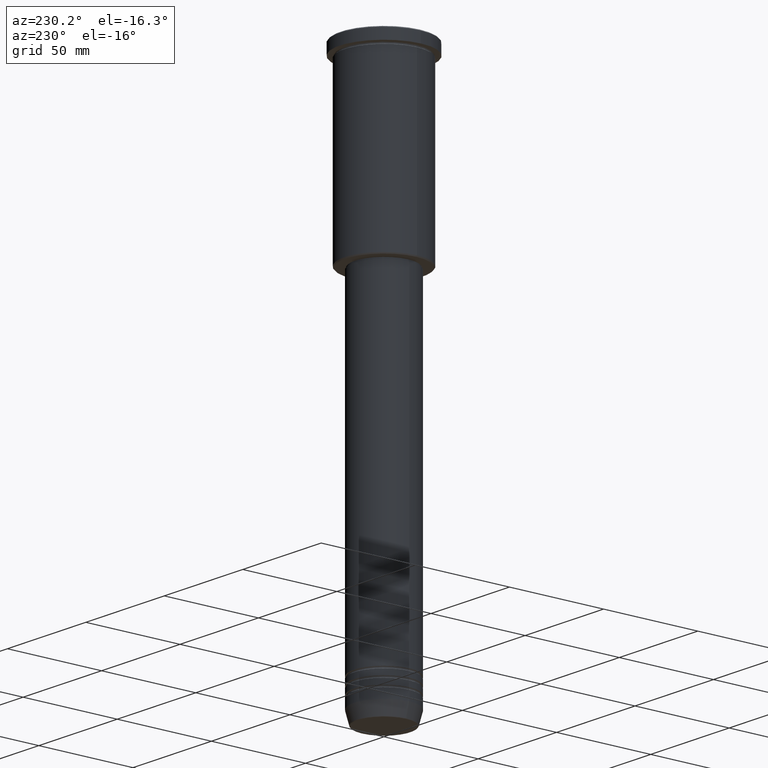
[diagram: clean part render]
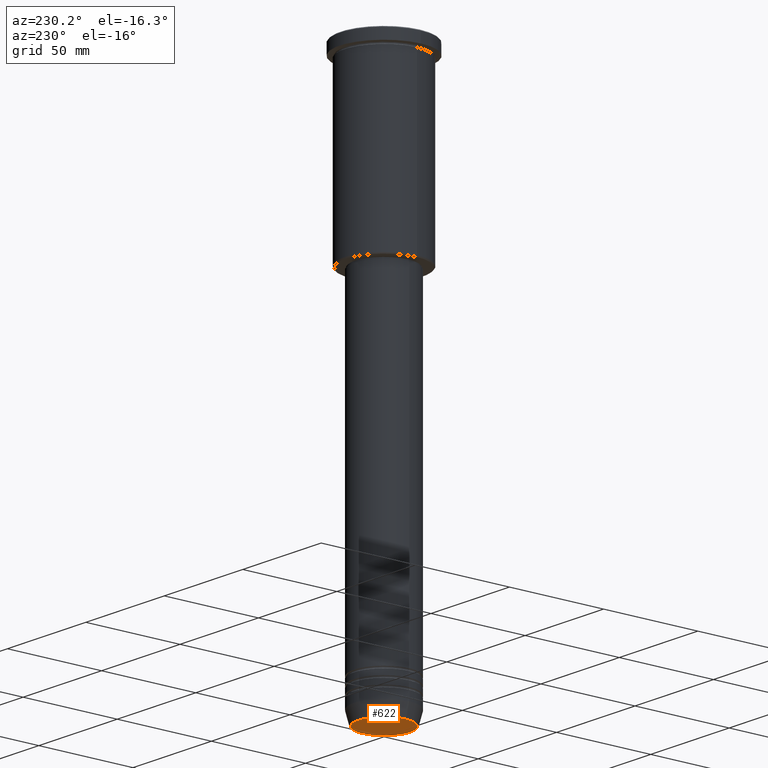
[diagram: same view with one face highlighted and labeled with its STEP entity id]
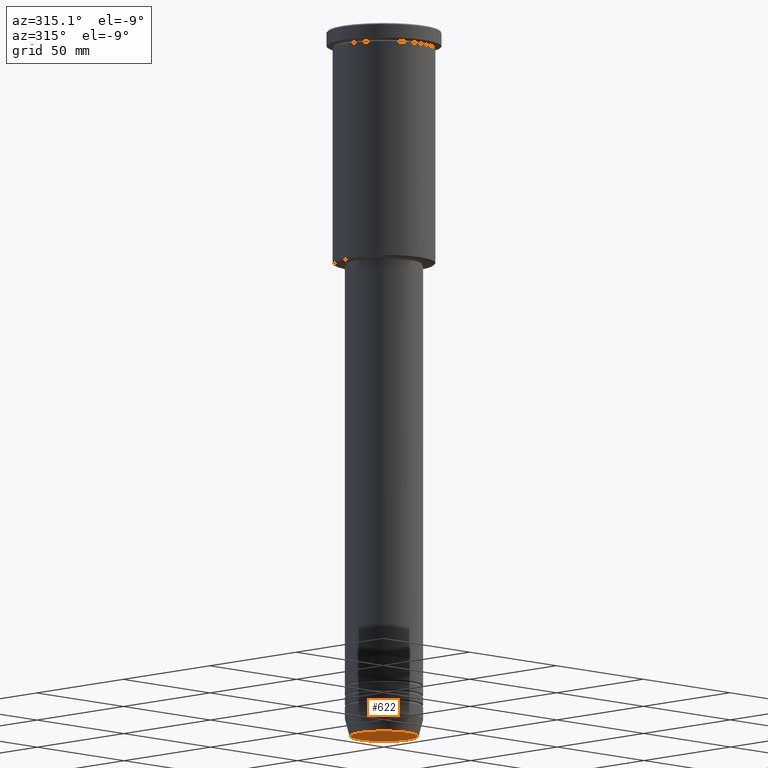
[diagram: same view with one face highlighted and labeled with its STEP entity id]
A machine part, auxiliary view. The second image highlights one B-rep face of the part: STEP entity #622.
A second angle (auxiliary view) of the same face is appended — the face is thin or edge-on in the first view.
In plain terms, the highlighted planar face has unit normal (0, -0, 1).
Its self-contained STEP definition (entity closure, byte-faithful):
#9 = DIRECTION ( 'NONE',  ( 1.000000000000000000, 0.000000000000000000, 0.000000000000000000 ) ) ;
#81 = CARTESIAN_POINT ( 'NONE',  ( 0.000000000000000000, 0.000000000000000000, -291.0000000000000568 ) ) ;
#90 = EDGE_CURVE ( 'NONE', #707, #159, #750, .T. ) ;
#135 = ORIENTED_EDGE ( 'NONE', *, *, #90, .T. ) ;
#159 = VERTEX_POINT ( 'NONE', #815 ) ;
#244 = AXIS2_PLACEMENT_3D ( 'NONE', #81, #1156, #699 ) ;
#284 = DIRECTION ( 'NONE',  ( 0.000000000000000000, -0.000000000000000000, 1.000000000000000000 ) ) ;
#333 = CARTESIAN_POINT ( 'NONE',  ( 0.000000000000000000, 0.000000000000000000, -291.0000000000000568 ) ) ;
#379 = CARTESIAN_POINT ( 'NONE',  ( 0.000000000000000000, 0.000000000000000000, -291.0000000000000568 ) ) ;
#452 = CIRCLE ( 'NONE', #868, 13.74069215899265828 ) ;
#510 = CARTESIAN_POINT ( 'NONE',  ( 13.74069215899265828, 0.000000000000000000, -291.0000000000000568 ) ) ;
#536 = DIRECTION ( 'NONE',  ( 1.000000000000000000, 0.000000000000000000, 0.000000000000000000 ) ) ;
#548 = AXIS2_PLACEMENT_3D ( 'NONE', #379, #284, #9 ) ;
#622 = ADVANCED_FACE ( 'NONE', ( #837 ), #833, .F. ) ;
#699 = DIRECTION ( 'NONE',  ( 1.000000000000000000, 0.000000000000000000, 0.000000000000000000 ) ) ;
#707 = VERTEX_POINT ( 'NONE', #510 ) ;
#750 = CIRCLE ( 'NONE', #244, 13.74069215899265828 ) ;
#799 = DIRECTION ( 'NONE',  ( 0.000000000000000000, 0.000000000000000000, -1.000000000000000000 ) ) ;
#815 = CARTESIAN_POINT ( 'NONE',  ( -13.74069215899265828, 1.712322416342415986E-15, -291.0000000000000568 ) ) ;
#833 = PLANE ( 'NONE',  #548 ) ;
#837 = FACE_OUTER_BOUND ( 'NONE', #1124, .T. ) ;
#861 = EDGE_CURVE ( 'NONE', #159, #707, #452, .T. ) ;
#868 = AXIS2_PLACEMENT_3D ( 'NONE', #333, #799, #536 ) ;
#1056 = ORIENTED_EDGE ( 'NONE', *, *, #861, .T. ) ;
#1124 = EDGE_LOOP ( 'NONE', ( #135, #1056 ) ) ;
#1156 = DIRECTION ( 'NONE',  ( 0.000000000000000000, 0.000000000000000000, -1.000000000000000000 ) ) ;